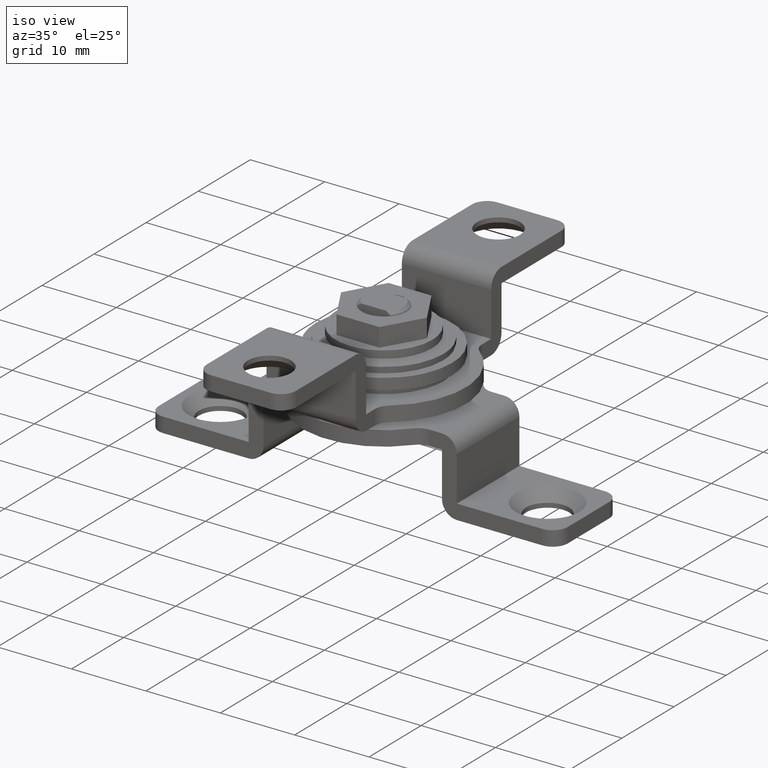
[diagram: clean part render]
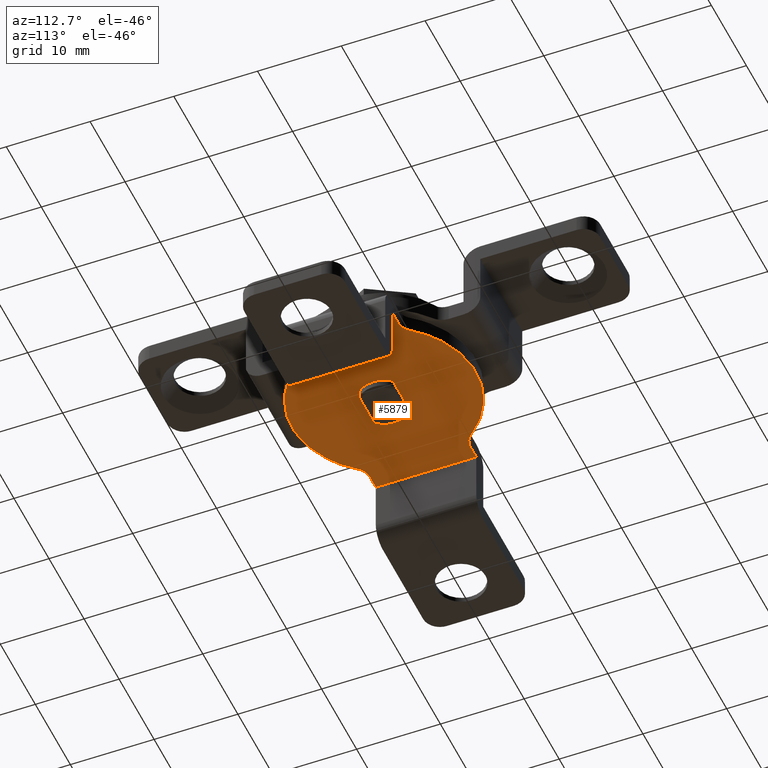
[diagram: tour spotlight — one face highlighted and labeled with its STEP entity id]
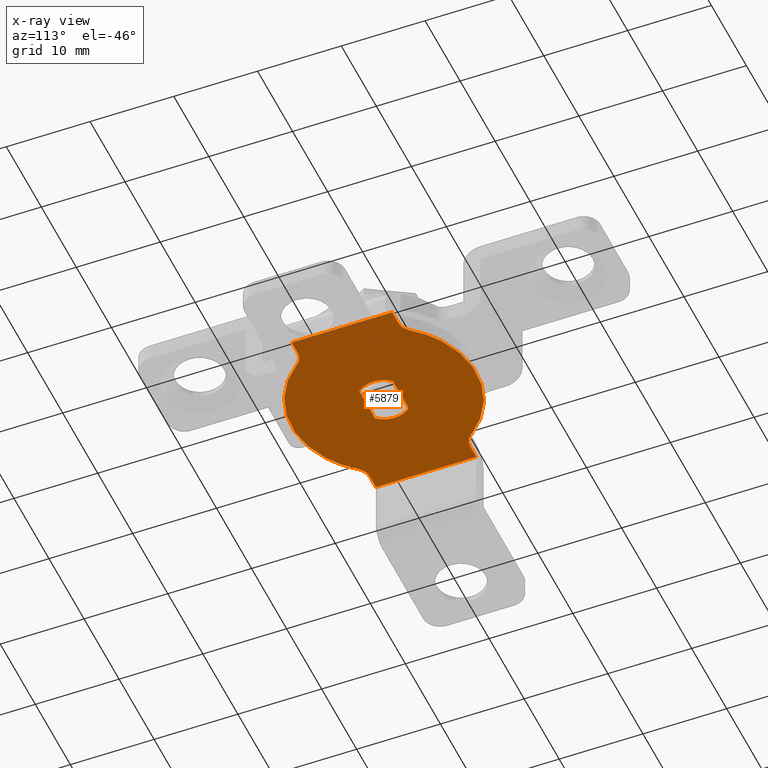
[diagram: x-ray of the same camera — body ghosted, this tour face saturated]
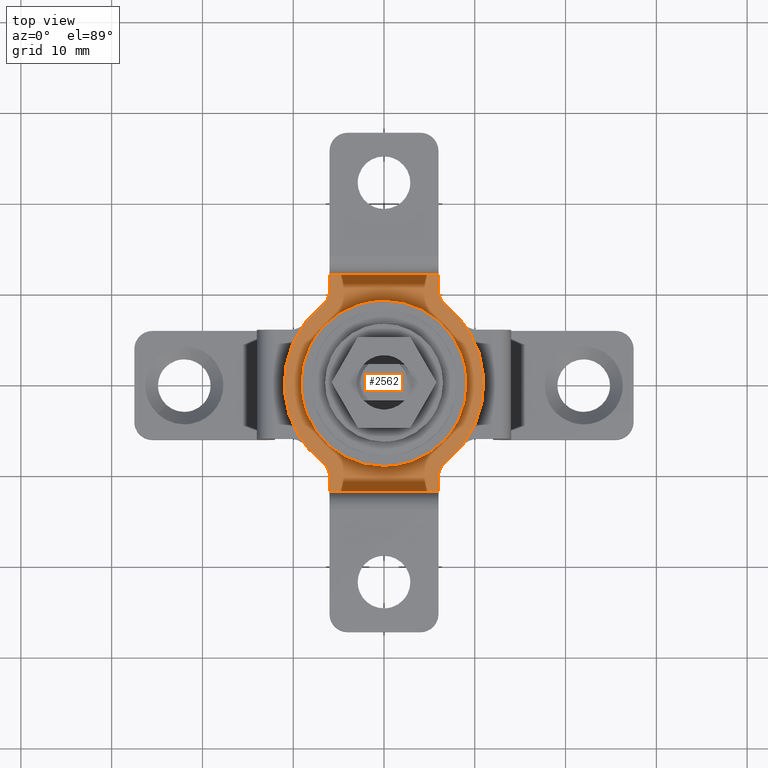
[diagram: tour spotlight — one face highlighted and labeled with its STEP entity id]
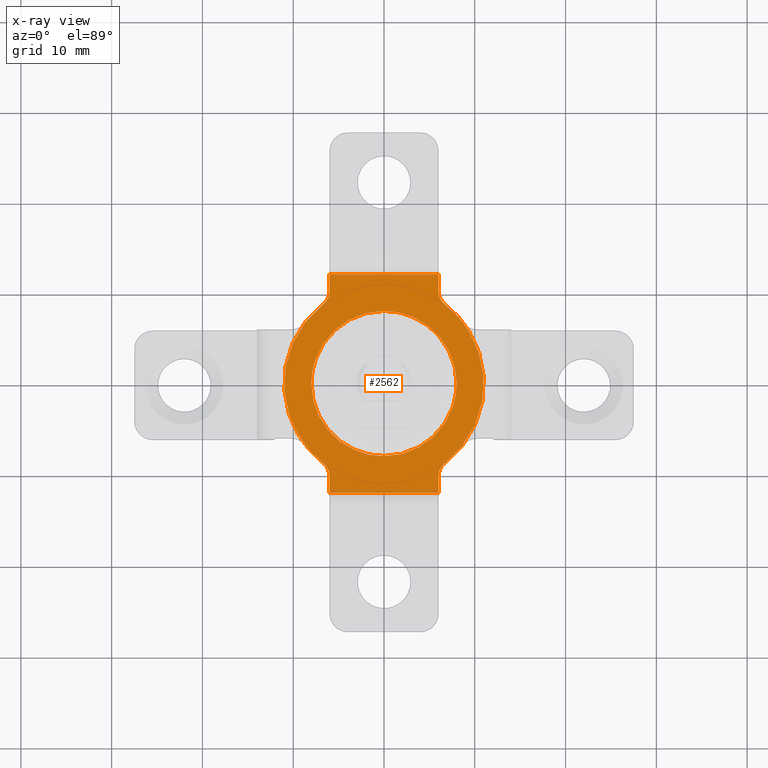
[diagram: x-ray of the same camera — body ghosted, this tour face saturated]
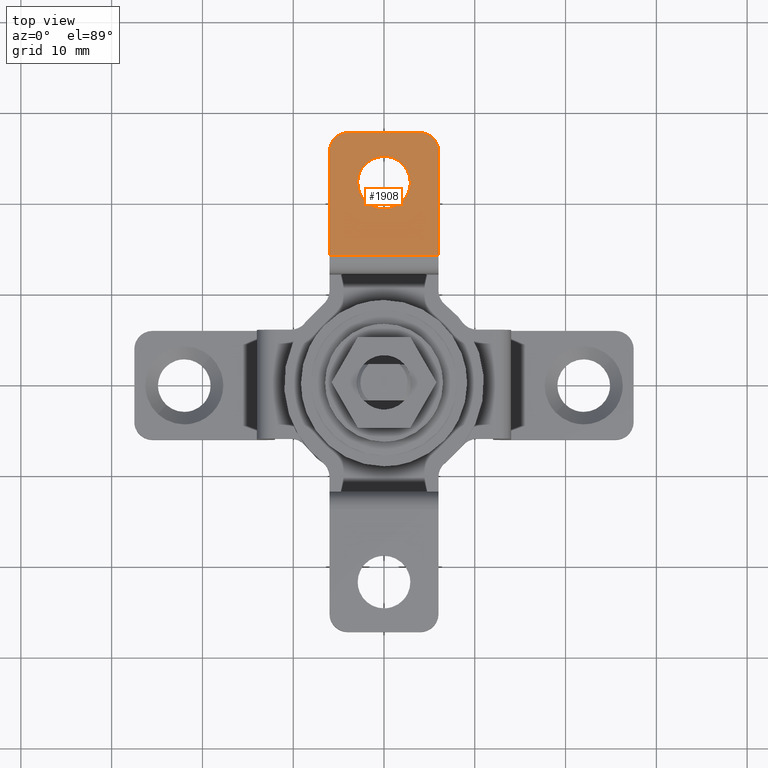
[diagram: tour spotlight — one face highlighted and labeled with its STEP entity id]
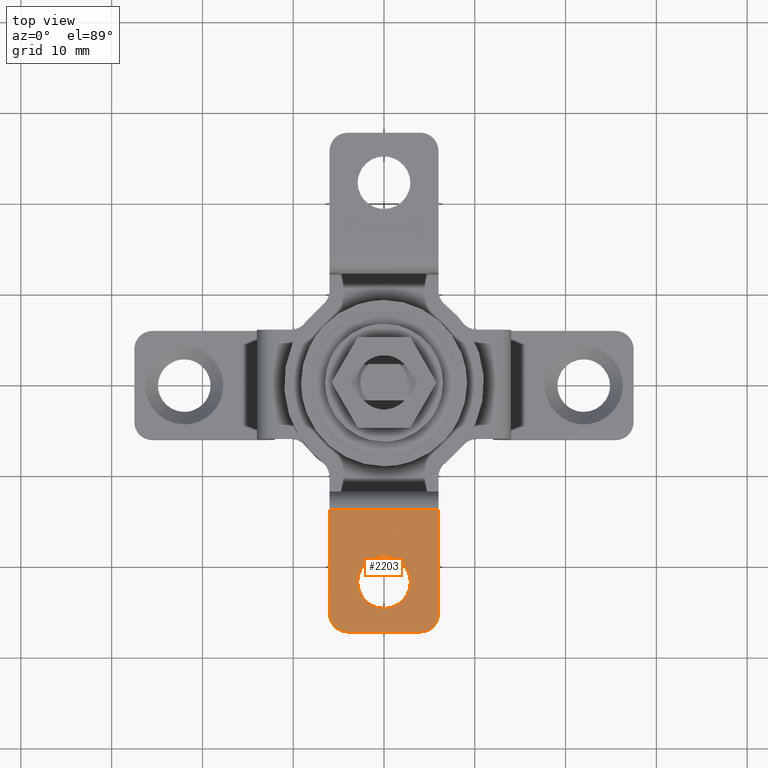
[diagram: tour spotlight — one face highlighted and labeled with its STEP entity id]
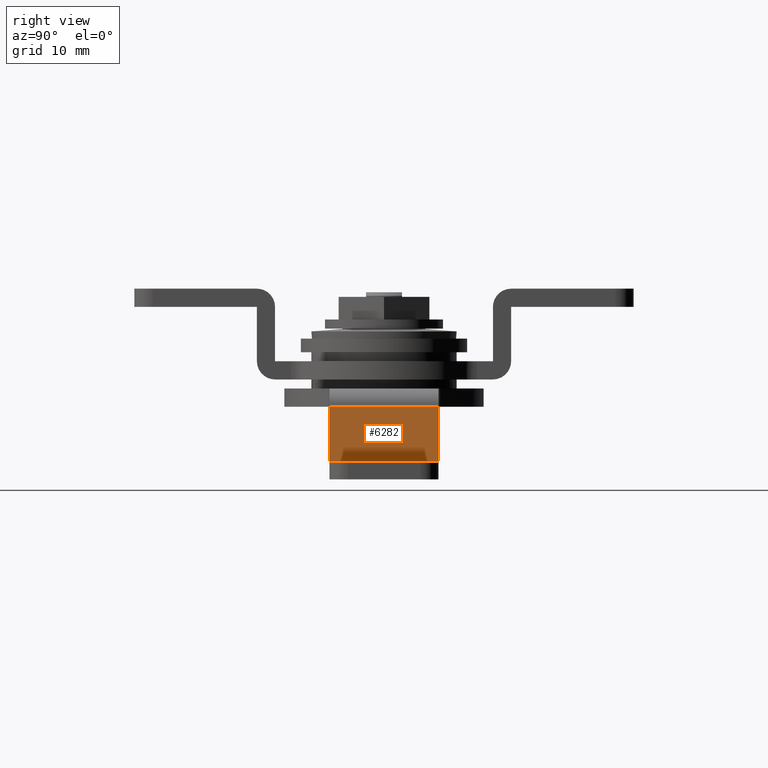
[diagram: tour spotlight — one face highlighted and labeled with its STEP entity id]
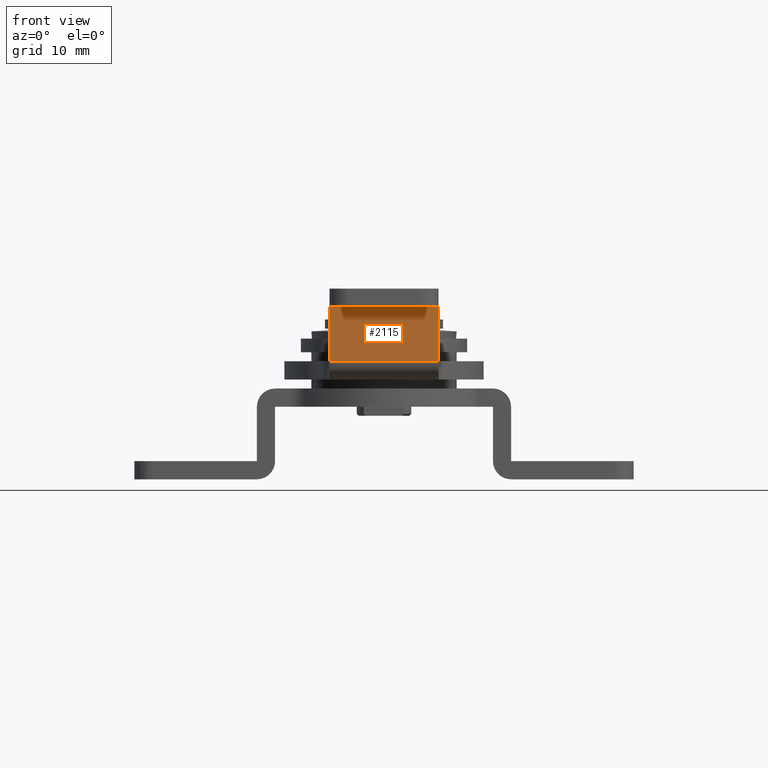
[diagram: tour spotlight — one face highlighted and labeled with its STEP entity id]
A machine part: a face-by-face anatomy tour. The part has 122 B-rep faces; the first image is the clean iso view, then the 6 largest visible faces are spotlighted one at a time (largest first), each with its STEP entity span.

Face 1 — auxiliary view, entity #5879. An x-ray twin of the same camera follows (body ghosted, this face saturated) — the face is partly hidden behind the body. In plain terms, the highlighted face is a freeform B-spline surface patch.
Definition (entity closure, byte-faithful):
#5166=CARTESIAN_POINT('',(2.236067977498360,-2.000000000000335,8.0));
#5167=VERTEX_POINT('',#5166);
#5173=CARTESIAN_POINT('',(-2.236067977501190,-2.000000000000325,8.0));
#5174=VERTEX_POINT('',#5173);
#5175=CARTESIAN_POINT('',(2.236067977498360,-2.000000000000335,8.0));
#5176=CARTESIAN_POINT('',(-2.236067977501190,-2.000000000000325,8.0));
#5177=QUASI_UNIFORM_CURVE('',1,(#5175,#5176),.UNSPECIFIED.,.F.,.U.);
#5178=EDGE_CURVE('',#5167,#5174,#5177,.T.);
#5218=CARTESIAN_POINT('',(2.236067977498385,1.999999999999685,8.0));
#5219=VERTEX_POINT('',#5218);
#5225=CARTESIAN_POINT('',(2.236067977498385,1.999999999999685,8.0));
#5226=CARTESIAN_POINT('',(2.418573477679395,1.796092458447181,8.000000000000014));
#5227=CARTESIAN_POINT('',(2.720720230414939,1.347416475633861,7.999999999999975));
#5228=CARTESIAN_POINT('',(2.959388170775649,0.639033863360458,8.000000000000012));
#5229=CARTESIAN_POINT('',(3.017799796243261,-0.000195013103150,7.999999999999985));
#5230=CARTESIAN_POINT('',(2.967949790371404,-0.512742725167427,8.000000000000020));
#5231=CARTESIAN_POINT('',(2.837478472484770,-1.022029091641268,7.999999999999947));
#5232=CARTESIAN_POINT('',(2.609201649545498,-1.522979021869174,8.000000000000028));
#5233=CARTESIAN_POINT('',(2.365302539735193,-1.855536375673588,7.999999999999989));
#5234=CARTESIAN_POINT('',(2.236067977498360,-2.000000000000335,8.0));
#5235=B_SPLINE_CURVE_WITH_KNOTS('',3,(#5225,#5226,#5227,#5228,#5229,#5230,#5231,#5232,#5233,#5234),.UNSPECIFIED.,.F.,.U.,(4,1,1,1,1,1,1,4),(0.000000052932458,0.820942670364675,1.607691166167566,2.223382478854872,2.736483788646654,3.146967125287501,3.796885966387161,4.378389653371751),.UNSPECIFIED.);
#5236=EDGE_CURVE('',#5219,#5167,#5235,.T.);
#5254=CARTESIAN_POINT('',(-2.236067977501220,1.999999999999685,8.0));
#5255=VERTEX_POINT('',#5254);
#5261=CARTESIAN_POINT('',(-2.236067977501220,1.999999999999685,8.0));
#5262=CARTESIAN_POINT('',(2.236067977498385,1.999999999999685,8.0));
#5263=QUASI_UNIFORM_CURVE('',1,(#5261,#5262),.UNSPECIFIED.,.F.,.U.);
#5264=EDGE_CURVE('',#5255,#5219,#5263,.T.);
#5298=CARTESIAN_POINT('',(-2.236067977501190,-2.000000000000325,8.0));
#5299=CARTESIAN_POINT('',(-2.441425730026927,-1.770622654832025,8.000000000000002));
#5300=CARTESIAN_POINT('',(-2.711349206695875,-1.354394058694802,7.999999999999977));
#5301=CARTESIAN_POINT('',(-2.926896320377254,-0.726259302464800,8.000000000000021));
#5302=CARTESIAN_POINT('',(-3.014649089403428,-0.160843282025251,7.999999999999979));
#5303=CARTESIAN_POINT('',(-2.992228468190904,0.400683946234387,8.000000000000034));
#5304=CARTESIAN_POINT('',(-2.851745816874633,0.990719338700565,7.999999999999954));
#5305=CARTESIAN_POINT('',(-2.609197475790349,1.522977056047599,7.999999999999998));
#5306=CARTESIAN_POINT('',(-2.365304311699611,1.855537085365555,8.000000000000005));
#5307=CARTESIAN_POINT('',(-2.236067977501220,1.999999999999685,8.0));
#5308=B_SPLINE_CURVE_WITH_KNOTS('',3,(#5298,#5299,#5300,#5301,#5302,#5303,#5304,#5305,#5306,#5307),.UNSPECIFIED.,.F.,.U.,(4,1,1,1,1,1,1,4),(0.000000052933419,0.923563602901487,1.470872975677219,1.983963864321350,2.633862441349733,3.146967125287635,3.796885966387205,4.378389653371746),.UNSPECIFIED.);
#5309=EDGE_CURVE('',#5174,#5255,#5308,.T.);
#5354=CARTESIAN_POINT('',(-8.670496801966060,-6.769230769230780,8.0));
#5355=VERTEX_POINT('',#5354);
#5356=CARTESIAN_POINT('',(-10.246950765959840,-6.0,8.0));
#5357=VERTEX_POINT('',#5356);
#5358=CARTESIAN_POINT('',(-8.670496801966060,-6.769230769230780,8.0));
#5359=CARTESIAN_POINT('',(-8.775220044491805,-6.635009280034265,8.000000000000005));
#5360=CARTESIAN_POINT('',(-8.951468153305550,-6.460684089386342,7.999999999999983));
#5361=CARTESIAN_POINT('',(-9.272932043078924,-6.242727764377050,8.000000000000039));
#5362=CARTESIAN_POINT('',(-9.670109963122373,-6.059231795073908,7.999999999999908));
#5363=CARTESIAN_POINT('',(-10.029410521615020,-5.999869692759231,8.000000000000078));
#5364=CARTESIAN_POINT('',(-10.246950765959840,-6.0,8.0));
#5365=B_SPLINE_CURVE_WITH_KNOTS('',3,(#5358,#5359,#5360,#5361,#5362,#5363,#5364),.UNSPECIFIED.,.F.,.U.,(4,1,1,1,4),(0.000000025409380,0.510711596060299,0.737694762376381,1.163283669152067,1.815860231809691),.UNSPECIFIED.);
#5366=EDGE_CURVE('',#5355,#5357,#5365,.T.);
#5408=CARTESIAN_POINT('',(-10.246950765959699,6.0,8.0));
#5409=VERTEX_POINT('',#5408);
#5410=CARTESIAN_POINT('',(-8.670496801965928,6.769230769230750,8.0));
#5411=VERTEX_POINT('',#5410);
#5412=CARTESIAN_POINT('',(-10.246950765959699,6.0,8.0));
#5413=CARTESIAN_POINT('',(-10.076710244561980,5.999949984415148,8.000000000000014));
#5414=CARTESIAN_POINT('',(-9.745722721803064,6.042522330935348,7.999999999999978));
#5415=CARTESIAN_POINT('',(-9.302649608520810,6.217373249347506,8.0));
#5416=CARTESIAN_POINT('',(-8.942297682716569,6.465502678686597,8.000000000000025));
#5417=CARTESIAN_POINT('',(-8.751965998206147,6.664856458793929,7.999999999999973));
#5418=CARTESIAN_POINT('',(-8.670496801965928,6.769230769230750,8.0));
#5419=B_SPLINE_CURVE_WITH_KNOTS('',3,(#5412,#5413,#5414,#5415,#5416,#5417,#5418),.UNSPECIFIED.,.F.,.U.,(4,1,1,1,4),(0.000000025409690,0.510711596060555,0.993047737127696,1.418641699260506,1.815860231809662),.UNSPECIFIED.);
#5420=EDGE_CURVE('',#5409,#5411,#5419,.T.);
#5488=CARTESIAN_POINT('',(8.670496801965451,6.769230769230750,8.0));
#5489=VERTEX_POINT('',#5488);
#5490=CARTESIAN_POINT('',(-8.670496801965928,6.769230769230750,8.0));
#5491=CARTESIAN_POINT('',(-8.126495621538275,7.466409643097290,8.000000000000002));
#5492=CARTESIAN_POINT('',(-7.201828233943165,8.394150124308165,8.000000000000005));
#5493=CARTESIAN_POINT('',(-5.856620117158043,9.334277348565847,7.999999999999991));
#5494=CARTESIAN_POINT('',(-4.764211143302306,9.941279372068122,8.000000000000020));
#5495=CARTESIAN_POINT('',(-3.488324925220891,10.471244421534040,8.000000000000039));
#5496=CARTESIAN_POINT('',(-2.099133986630085,10.828617521924549,7.999999999999975));
#5497=CARTESIAN_POINT('',(-0.625997438307285,11.012410955959011,8.000000000000103));
#5498=CARTESIAN_POINT('',(1.043146779167117,11.006610574127970,8.000000000000012));
#5499=CARTESIAN_POINT('',(2.844004886947609,10.683834637202329,7.999999999999957));
#5500=CARTESIAN_POINT('',(4.362332856478190,10.127624877133419,8.000000000000021));
#5501=CARTESIAN_POINT('',(5.521966582524566,9.536076083533336,8.000000000000082));
#5502=CARTESIAN_POINT('',(6.549750898098052,8.870707097943983,7.999999999999901));
#5503=CARTESIAN_POINT('',(7.650533143589396,7.952652801799985,8.000000000000226));
#5504=CARTESIAN_POINT('',(8.334417988021842,7.199755597358657,7.999999999999593));
#5505=CARTESIAN_POINT('',(8.670496801965451,6.769230769230750,8.0));
#5506=B_SPLINE_CURVE_WITH_KNOTS('',3,(#5490,#5491,#5492,#5493,#5494,#5495,#5496,#5497,#5498,#5499,#5500,#5501,#5502,#5503,#5504,#5505),.UNSPECIFIED.,.F.,.U.,(4,1,1,1,1,1,1,1,1,1,1,1,1,4),(0.000000033996926,2.652840556934738,3.901234903642093,4.915559835962917,6.398037615298884,8.036566180020285,9.206929010794958,10.845421125650160,13.030129060234261,14.668653344996351,15.682977094635010,16.931381641843011,18.335833063847168,19.974336941776169),.UNSPECIFIED.);
#5507=EDGE_CURVE('',#5411,#5489,#5506,.T.);
#5553=CARTESIAN_POINT('',(8.670496801965589,-6.769230769230780,8.0));
#5554=VERTEX_POINT('',#5553);
#5555=CARTESIAN_POINT('',(8.670496801965589,-6.769230769230780,8.0));
#5556=CARTESIAN_POINT('',(8.126497900482724,-7.466412082327448,8.000000000000027));
#5557=CARTESIAN_POINT('',(7.201825986360758,-8.394147452024564,7.999999999999954));
#5558=CARTESIAN_POINT('',(5.856621261045522,-9.334279565841916,8.000000000000046));
#5559=CARTESIAN_POINT('',(4.809725680267921,-9.915978084570140,7.999999999999957));
#5560=CARTESIAN_POINT('',(3.538210073587163,-10.454749092178741,7.999999999999989));
#5561=CARTESIAN_POINT('',(2.150830233724436,-10.822190950629020,8.000000000000034));
#5562=CARTESIAN_POINT('',(0.574298371470369,-11.018882541203210,8.000000000000028));
#5563=CARTESIAN_POINT('',(-0.834718147443637,-11.003893218101551,8.000000000000021));
#5564=CARTESIAN_POINT('',(-2.431945099021108,-10.764193830832120,8.000000000000032));
#5565=CARTESIAN_POINT('',(-4.108683616074942,-10.268901250464801,7.999999999999870));
#5566=CARTESIAN_POINT('',(-5.858043703656398,-9.384378137575812,8.000000000000254));
#5567=CARTESIAN_POINT('',(-7.434154176151439,-8.179669347651608,7.999999999999596));
#5568=CARTESIAN_POINT('',(-8.286417421400500,-7.261275725935842,8.000000000000219));
#5569=CARTESIAN_POINT('',(-8.670496801966060,-6.769230769230780,8.0));
#5570=B_SPLINE_CURVE_WITH_KNOTS('',3,(#5555,#5556,#5557,#5558,#5559,#5560,#5561,#5562,#5563,#5564,#5565,#5566,#5567,#5568,#5569),.UNSPECIFIED.,.F.,.U.,(4,1,1,1,1,1,1,1,1,1,1,1,4),(0.000000033971684,2.652840556912764,3.901234903621718,4.915559835943798,6.241983978261279,8.036566180005055,9.206929010781256,11.001477075981409,12.249871799075629,14.044455759939931,16.229155822002031,18.101743595906839,19.974336941776691),.UNSPECIFIED.);
#5571=EDGE_CURVE('',#5554,#5355,#5570,.T.);
#5661=CARTESIAN_POINT('',(-12.0,-6.0,8.0));
#5662=VERTEX_POINT('',#5661);
#5669=CARTESIAN_POINT('',(-12.0,6.0,8.0));
#5670=VERTEX_POINT('',#5669);
#5676=CARTESIAN_POINT('',(-12.0,6.0,8.0));
#5677=CARTESIAN_POINT('',(-12.0,-6.0,8.0));
#5678=QUASI_UNIFORM_CURVE('',1,(#5676,#5677),.UNSPECIFIED.,.F.,.U.);
#5679=EDGE_CURVE('',#5670,#5662,#5678,.T.);
#5770=CARTESIAN_POINT('',(-10.246950765959840,-6.0,8.0));
#5771=CARTESIAN_POINT('',(-12.0,-6.0,8.0));
#5772=QUASI_UNIFORM_CURVE('',1,(#5770,#5771),.UNSPECIFIED.,.F.,.U.);
#5773=EDGE_CURVE('',#5357,#5662,#5772,.T.);
#5807=CARTESIAN_POINT('',(-10.246950765959699,6.0,8.0));
#5808=CARTESIAN_POINT('',(-12.0,6.0,8.0));
#5809=QUASI_UNIFORM_CURVE('',1,(#5807,#5808),.UNSPECIFIED.,.F.,.U.);
#5810=EDGE_CURVE('',#5409,#5670,#5809,.T.);
#5817=CARTESIAN_POINT('',(-13.198799953483350,-12.098871152401070,8.0));
#5818=CARTESIAN_POINT('',(13.198800597213509,-12.098871152401070,8.0));
#5819=CARTESIAN_POINT('',(-13.198799953483350,12.098905770778559,8.0));
#5820=CARTESIAN_POINT('',(13.198800597213509,12.098905770778559,8.0));
#5821=B_SPLINE_SURFACE_WITH_KNOTS('',1,1,((#5817,#5819),(#5818,#5820)),.UNSPECIFIED.,.F.,.F.,.U.,(2,2),(2,2),(0.0,26.397600550696851),(0.0,24.197776923179621),.UNSPECIFIED.);
#5822=CARTESIAN_POINT('',(12.0,-6.0,8.0));
#5823=VERTEX_POINT('',#5822);
#5824=CARTESIAN_POINT('',(10.246950765959379,-6.0,8.0));
#5825=VERTEX_POINT('',#5824);
#5826=CARTESIAN_POINT('',(12.0,-6.0,8.0));
#5827=CARTESIAN_POINT('',(10.246950765959379,-6.0,8.0));
#5828=QUASI_UNIFORM_CURVE('',1,(#5826,#5827),.UNSPECIFIED.,.F.,.U.);
#5829=EDGE_CURVE('',#5823,#5825,#5828,.T.);
#5830=ORIENTED_EDGE('',*,*,#5829,.T.);
#5831=CARTESIAN_POINT('',(10.246950765959379,-6.0,8.0));
#5832=CARTESIAN_POINT('',(10.029409579618720,-5.999874211863610,8.000000000000014));
#5833=CARTESIAN_POINT('',(9.670118527070793,-6.059235968925167,7.999999999999992));
#5834=CARTESIAN_POINT('',(9.117474914936278,-6.314486776418594,8.000000000000005));
#5835=CARTESIAN_POINT('',(8.821659177248860,-6.575231599577090,7.999999999999986));
#5836=CARTESIAN_POINT('',(8.670496801965589,-6.769230769230780,8.0));
#5837=B_SPLINE_CURVE_WITH_KNOTS('',3,(#5831,#5832,#5833,#5834,#5835,#5836),.UNSPECIFIED.,.F.,.U.,(4,1,1,4),(0.000000025409177,0.652576588067328,1.078165494843095,1.815860231809700),.UNSPECIFIED.);
#5838=EDGE_CURVE('',#5825,#5554,#5837,.T.);
#5839=ORIENTED_EDGE('',*,*,#5838,.T.);
#5840=ORIENTED_EDGE('',*,*,#5571,.T.);
#5841=ORIENTED_EDGE('',*,*,#5366,.T.);
#5842=ORIENTED_EDGE('',*,*,#5773,.T.);
#5843=ORIENTED_EDGE('',*,*,#5679,.F.);
#5844=ORIENTED_EDGE('',*,*,#5810,.F.);
#5845=ORIENTED_EDGE('',*,*,#5420,.T.);
#5846=ORIENTED_EDGE('',*,*,#5507,.T.);
#5847=CARTESIAN_POINT('',(10.246950765959220,6.0,8.0));
#5848=VERTEX_POINT('',#5847);
#5849=CARTESIAN_POINT('',(8.670496801965451,6.769230769230750,8.0));
#5850=CARTESIAN_POINT('',(8.781032229391188,6.627545449224662,8.000000000000021));
#5851=CARTESIAN_POINT('',(9.020169506848912,6.394348011844222,7.999999999999974));
#5852=CARTESIAN_POINT('',(9.432023399866139,6.155827530207420,8.000000000000011));
#5853=CARTESIAN_POINT('',(9.840281185003024,6.027329980821019,7.999999999999993));
#5854=CARTESIAN_POINT('',(10.114545109416250,5.999985861762210,8.000000000000007));
#5855=CARTESIAN_POINT('',(10.246950765959220,6.0,8.0));
#5856=B_SPLINE_CURVE_WITH_KNOTS('',3,(#5849,#5850,#5851,#5852,#5853,#5854,#5855),.UNSPECIFIED.,.F.,.U.,(4,1,1,1,4),(0.000000025411380,0.539086061160822,0.993047737128065,1.418641699260594,1.815860231809663),.UNSPECIFIED.);
#5857=EDGE_CURVE('',#5489,#5848,#5856,.T.);
#5858=ORIENTED_EDGE('',*,*,#5857,.T.);
#5859=CARTESIAN_POINT('',(12.0,6.0,8.0));
#5860=VERTEX_POINT('',#5859);
#5861=CARTESIAN_POINT('',(12.0,6.0,8.0));
#5862=CARTESIAN_POINT('',(10.246950765959220,6.0,8.0));
#5863=QUASI_UNIFORM_CURVE('',1,(#5861,#5862),.UNSPECIFIED.,.F.,.U.);
#5864=EDGE_CURVE('',#5860,#5848,#5863,.T.);
#5865=ORIENTED_EDGE('',*,*,#5864,.F.);
#5866=CARTESIAN_POINT('',(12.0,6.0,8.0));
#5867=CARTESIAN_POINT('',(12.0,-6.0,8.0));
#5868=QUASI_UNIFORM_CURVE('',1,(#5866,#5867),.UNSPECIFIED.,.F.,.U.);
#5869=EDGE_CURVE('',#5860,#5823,#5868,.T.);
#5870=ORIENTED_EDGE('',*,*,#5869,.T.);
#5871=EDGE_LOOP('',(#5830,#5839,#5840,#5841,#5842,#5843,#5844,#5845,#5846,#5858,#5865,#5870));
#5872=FACE_OUTER_BOUND('',#5871,.T.);
#5873=ORIENTED_EDGE('',*,*,#5309,.F.);
#5874=ORIENTED_EDGE('',*,*,#5178,.F.);
#5875=ORIENTED_EDGE('',*,*,#5236,.F.);
#5876=ORIENTED_EDGE('',*,*,#5264,.F.);
#5877=EDGE_LOOP('',(#5873,#5874,#5875,#5876));
#5878=FACE_BOUND('',#5877,.T.);
#5879=ADVANCED_FACE('',(#5872,#5878),#5821,.F.);

Face 2 — top view, entity #2562. An x-ray twin of the same camera follows (body ghosted, this face saturated) — the face is partly hidden behind the body. In plain terms, the highlighted face is a freeform B-spline surface patch.
Definition (entity closure, byte-faithful):
#1517=CARTESIAN_POINT('',(6.769230769230780,-8.670496801965911,12.999999999961920));
#1518=VERTEX_POINT('',#1517);
#1524=CARTESIAN_POINT('',(6.0,-10.246950765959699,12.999999999961920));
#1525=VERTEX_POINT('',#1524);
#1526=CARTESIAN_POINT('',(6.0,-10.246950765959699,12.999999999961920));
#1527=CARTESIAN_POINT('',(5.999988525793829,-10.124003179812981,12.999999999961920));
#1528=CARTESIAN_POINT('',(6.023613913863414,-9.868651231201657,12.999999999961920));
#1529=CARTESIAN_POINT('',(6.132691236281459,-9.494556627093193,12.999999999961920));
#1530=CARTESIAN_POINT('',(6.357500614936454,-9.065111557556660,12.999999999961950));
#1531=CARTESIAN_POINT('',(6.597680221234377,-8.804268570193916,12.999999999961920));
#1532=CARTESIAN_POINT('',(6.769230769230780,-8.670496801965911,12.999999999961920));
#1533=B_SPLINE_CURVE_WITH_KNOTS('',3,(#1526,#1527,#1528,#1529,#1530,#1531,#1532),.UNSPECIFIED.,.F.,.U.,(4,1,1,1,4),(0.000000025410248,0.368844092859777,0.766073545848003,1.163283669152184,1.815860231809697),.UNSPECIFIED.);
#1534=EDGE_CURVE('',#1525,#1518,#1533,.T.);
#1558=CARTESIAN_POINT('',(6.769230769230780,8.670496801965911,12.999999999961920));
#1559=VERTEX_POINT('',#1558);
#1560=CARTESIAN_POINT('',(6.0,10.246950765959699,12.999999999961920));
#1561=VERTEX_POINT('',#1560);
#1562=CARTESIAN_POINT('',(6.769230769230780,8.670496801965911,12.999999999961920));
#1563=CARTESIAN_POINT('',(6.649937543187013,8.763597401833307,12.999999999961920));
#1564=CARTESIAN_POINT('',(6.425860790302772,8.983714322243017,12.999999999961910));
#1565=CARTESIAN_POINT('',(6.172652693195480,9.387173046927074,12.999999999961920));
#1566=CARTESIAN_POINT('',(6.029202719110234,9.821358541628602,12.999999999961910));
#1567=CARTESIAN_POINT('',(5.999988707841355,10.114546080444910,12.999999999961929));
#1568=CARTESIAN_POINT('',(6.0,10.246950765959699,12.999999999961920));
#1569=B_SPLINE_CURVE_WITH_KNOTS('',3,(#1562,#1563,#1564,#1565,#1566,#1567,#1568),.UNSPECIFIED.,.F.,.U.,(4,1,1,1,4),(0.000000025410377,0.453965077010190,0.936291796485045,1.418641699260477,1.815860231809698),.UNSPECIFIED.);
#1570=EDGE_CURVE('',#1559,#1561,#1569,.T.);
#1720=CARTESIAN_POINT('',(-6.000000000000230,10.246950765959481,12.999999999961920));
#1721=VERTEX_POINT('',#1720);
#1722=CARTESIAN_POINT('',(-6.769230769230959,8.670496801965719,12.999999999961920));
#1723=VERTEX_POINT('',#1722);
#1724=CARTESIAN_POINT('',(-6.000000000000230,10.246950765959481,12.999999999961920));
#1725=CARTESIAN_POINT('',(-5.999985867120543,10.114545117555220,12.999999999961940));
#1726=CARTESIAN_POINT('',(-6.027329861164495,9.840281108236722,12.999999999961910));
#1727=CARTESIAN_POINT('',(-6.155828307751600,9.432023965775786,12.999999999961910));
#1728=CARTESIAN_POINT('',(-6.394346177373172,9.020168292967275,12.999999999961970));
#1729=CARTESIAN_POINT('',(-6.627546724693447,8.781032832324508,12.999999999961901));
#1730=CARTESIAN_POINT('',(-6.769230769230959,8.670496801965719,12.999999999961920));
#1731=B_SPLINE_CURVE_WITH_KNOTS('',3,(#1724,#1725,#1726,#1727,#1728,#1729,#1730),.UNSPECIFIED.,.F.,.U.,(4,1,1,1,4),(0.000000025410122,0.397218557959173,0.822812520091843,1.276774196059462,1.815860231809641),.UNSPECIFIED.);
#1732=EDGE_CURVE('',#1721,#1723,#1731,.T.);
#1763=CARTESIAN_POINT('',(-6.000000000000230,-10.246950765959481,12.999999999961920));
#1764=VERTEX_POINT('',#1763);
#1770=CARTESIAN_POINT('',(-6.769230769230959,-8.670496801965719,12.999999999961920));
#1771=VERTEX_POINT('',#1770);
#1772=CARTESIAN_POINT('',(-6.769230769230959,-8.670496801965719,12.999999999961920));
#1773=CARTESIAN_POINT('',(-6.664857988450565,-8.751966759490479,12.999999999961920));
#1774=CARTESIAN_POINT('',(-6.451742866040494,-8.955419949821160,12.999999999961901));
#1775=CARTESIAN_POINT('',(-6.187179222039081,-9.351520096347977,12.999999999961950));
#1776=CARTESIAN_POINT('',(-6.031065393679310,-9.802447950997243,12.999999999961910));
#1777=CARTESIAN_POINT('',(-5.999991964858912,-10.114546541091951,12.999999999961920));
#1778=CARTESIAN_POINT('',(-6.000000000000230,-10.246950765959481,12.999999999961920));
#1779=B_SPLINE_CURVE_WITH_KNOTS('',3,(#1772,#1773,#1774,#1775,#1776,#1777,#1778),.UNSPECIFIED.,.F.,.U.,(4,1,1,1,4),(0.000000025410276,0.397218557959373,0.879568460734846,1.418641699260453,1.815860231809641),.UNSPECIFIED.);
#1780=EDGE_CURVE('',#1771,#1764,#1779,.T.);
#1806=CARTESIAN_POINT('',(-6.769230769230959,8.670496801965719,12.999999999961920));
#1807=CARTESIAN_POINT('',(-7.199745001661836,8.334405635883014,12.999999999961929));
#1808=CARTESIAN_POINT('',(-8.126467083157579,7.492758213035355,12.999999999961910));
#1809=CARTESIAN_POINT('',(-9.204182460716545,6.113300732849392,12.999999999961929));
#1810=CARTESIAN_POINT('',(-10.066578276450819,4.534861037535948,12.999999999961940));
#1811=CARTESIAN_POINT('',(-10.596109591785661,3.089193982840494,12.999999999961890));
#1812=CARTESIAN_POINT('',(-10.953339771113040,1.407030769465483,12.999999999961840));
#1813=CARTESIAN_POINT('',(-11.039279482994770,-0.105401911469618,12.999999999962160));
#1814=CARTESIAN_POINT('',(-10.910040335677230,-1.558187341810926,12.999999999961810));
#1815=CARTESIAN_POINT('',(-10.617352440312690,-3.040186737715336,12.999999999962080));
#1816=CARTESIAN_POINT('',(-10.118821630896420,-4.416310433074958,12.999999999961769));
#1817=CARTESIAN_POINT('',(-9.404092159077857,-5.746559154441415,12.999999999961940));
#1818=CARTESIAN_POINT('',(-8.757370251248165,-6.693175912958504,12.999999999962100));
#1819=CARTESIAN_POINT('',(-7.875421887541212,-7.720666847978963,12.999999999961579));
#1820=CARTESIAN_POINT('',(-7.199757783958206,-8.334420610538205,12.999999999962320));
#1821=CARTESIAN_POINT('',(-6.769230769230959,-8.670496801965719,12.999999999961920));
#1822=B_SPLINE_CURVE_WITH_KNOTS('',3,(#1806,#1807,#1808,#1809,#1810,#1811,#1812,#1813,#1814,#1815,#1816,#1817,#1818,#1819,#1820,#1821),.UNSPECIFIED.,.F.,.U.,(4,1,1,1,1,1,1,1,1,1,1,1,1,4),(0.000000033990929,1.638515277970996,3.745182047977629,5.227659011690957,7.022239379193859,8.348666933970291,10.377287749056840,11.547646485114290,12.718030616186789,14.902727960667921,15.917054950893601,17.243482860797641,18.335833063847009,19.974336941776048),.UNSPECIFIED.);
#1823=EDGE_CURVE('',#1723,#1771,#1822,.T.);
#1845=CARTESIAN_POINT('',(6.769230769230780,-8.670496801965911,12.999999999961920));
#1846=CARTESIAN_POINT('',(7.466402783328340,-8.126488928559770,12.999999999961920));
#1847=CARTESIAN_POINT('',(8.394157254898911,-7.201834847080708,12.999999999961901));
#1848=CARTESIAN_POINT('',(9.334273350855096,-5.856617300672225,12.999999999961950));
#1849=CARTESIAN_POINT('',(9.966582001021379,-4.718700343526351,12.999999999961860));
#1850=CARTESIAN_POINT('',(10.487726377893930,-3.438438753171425,12.999999999961840));
#1851=CARTESIAN_POINT('',(10.835061276942580,-2.047444020784315,12.999999999962110));
#1852=CARTESIAN_POINT('',(11.018874582682850,-0.574304461330700,12.999999999961791));
#1853=CARTESIAN_POINT('',(11.000374037223059,1.173950357006579,12.999999999962190));
#1854=CARTESIAN_POINT('',(10.620295427866470,3.097712207775166,12.999999999961600));
#1855=CARTESIAN_POINT('',(9.933868489532689,4.818614717211220,12.999999999962389));
#1856=CARTESIAN_POINT('',(9.079589235125839,6.281883299151600,12.999999999961551));
#1857=CARTESIAN_POINT('',(8.049209656955446,7.562878820473374,12.999999999962290));
#1858=CARTESIAN_POINT('',(7.199749078283224,8.334413210110661,12.999999999961981));
#1859=CARTESIAN_POINT('',(6.769230769230780,8.670496801965911,12.999999999961920));
#1860=B_SPLINE_CURVE_WITH_KNOTS('',3,(#1845,#1846,#1847,#1848,#1849,#1850,#1851,#1852,#1853,#1854,#1855,#1856,#1857,#1858,#1859),.UNSPECIFIED.,.F.,.U.,(4,1,1,1,1,1,1,1,1,1,1,1,4),(0.000000033966096,2.652840556908295,3.901234903617768,4.915559835940245,6.554082851923859,8.036566180002559,9.206929010779085,11.001477075979750,13.264199305156350,15.058777898713110,16.541256525272239,18.335833063845541,19.974336941776748),.UNSPECIFIED.);
#1861=EDGE_CURVE('',#1518,#1559,#1860,.T.);
#2262=CARTESIAN_POINT('',(6.0,-12.0,12.999999999961920));
#2263=VERTEX_POINT('',#2262);
#2269=CARTESIAN_POINT('',(-6.000000000000230,-12.0,12.999999999961920));
#2270=VERTEX_POINT('',#2269);
#2271=CARTESIAN_POINT('',(-6.000000000000230,-12.0,12.999999999961920));
#2272=CARTESIAN_POINT('',(6.0,-12.0,12.999999999961920));
#2273=QUASI_UNIFORM_CURVE('',1,(#2271,#2272),.UNSPECIFIED.,.F.,.U.);
#2274=EDGE_CURVE('',#2270,#2263,#2273,.T.);
#2290=CARTESIAN_POINT('',(6.0,12.0,12.999999999961920));
#2291=VERTEX_POINT('',#2290);
#2306=CARTESIAN_POINT('',(-6.000000000000230,12.0,12.999999999961920));
#2307=VERTEX_POINT('',#2306);
#2313=CARTESIAN_POINT('',(-6.000000000000230,12.0,12.999999999961920));
#2314=CARTESIAN_POINT('',(6.0,12.0,12.999999999961920));
#2315=QUASI_UNIFORM_CURVE('',1,(#2313,#2314),.UNSPECIFIED.,.F.,.U.);
#2316=EDGE_CURVE('',#2307,#2291,#2315,.T.);
#2373=CARTESIAN_POINT('',(6.0,-12.0,12.999999999961920));
#2374=CARTESIAN_POINT('',(6.0,-10.246950765959699,12.999999999961920));
#2375=QUASI_UNIFORM_CURVE('',1,(#2373,#2374),.UNSPECIFIED.,.F.,.U.);
#2376=EDGE_CURVE('',#2263,#1525,#2375,.T.);
#2398=CARTESIAN_POINT('',(6.0,10.246950765959699,12.999999999961920));
#2399=CARTESIAN_POINT('',(6.0,12.0,12.999999999961920));
#2400=QUASI_UNIFORM_CURVE('',1,(#2398,#2399),.UNSPECIFIED.,.F.,.U.);
#2401=EDGE_CURVE('',#1561,#2291,#2400,.T.);
#2415=CARTESIAN_POINT('',(-6.000000000000230,-12.0,12.999999999961920));
#2416=CARTESIAN_POINT('',(-6.000000000000230,-10.246950765959481,12.999999999961920));
#2417=QUASI_UNIFORM_CURVE('',1,(#2415,#2416),.UNSPECIFIED.,.F.,.U.);
#2418=EDGE_CURVE('',#2270,#1764,#2417,.T.);
#2439=CARTESIAN_POINT('',(-6.000000000000230,10.246950765959481,12.999999999961920));
#2440=CARTESIAN_POINT('',(-6.000000000000230,12.0,12.999999999961920));
#2441=QUASI_UNIFORM_CURVE('',1,(#2439,#2440),.UNSPECIFIED.,.F.,.U.);
#2442=EDGE_CURVE('',#1721,#2307,#2441,.T.);
#2454=CARTESIAN_POINT('',(12.098892464074220,-13.198799953483350,12.999999999961920));
#2455=CARTESIAN_POINT('',(-12.098890300425561,-13.198799953483350,12.999999999961920));
#2456=CARTESIAN_POINT('',(12.098892464074220,13.198800597213509,12.999999999961920));
#2457=CARTESIAN_POINT('',(-12.098890300425561,13.198800597213509,12.999999999961920));
#2458=B_SPLINE_SURFACE_WITH_KNOTS('',1,1,((#2454,#2456),(#2455,#2457)),.UNSPECIFIED.,.F.,.F.,.U.,(2,2),(2,2),(0.0,24.197782764499781),(0.0,26.397600550696851),.UNSPECIFIED.);
#2459=ORIENTED_EDGE('',*,*,#2442,.F.);
#2460=ORIENTED_EDGE('',*,*,#1732,.T.);
#2461=ORIENTED_EDGE('',*,*,#1823,.T.);
#2462=ORIENTED_EDGE('',*,*,#1780,.T.);
#2463=ORIENTED_EDGE('',*,*,#2418,.F.);
#2464=ORIENTED_EDGE('',*,*,#2274,.T.);
#2465=ORIENTED_EDGE('',*,*,#2376,.T.);
#2466=ORIENTED_EDGE('',*,*,#1534,.T.);
#2467=ORIENTED_EDGE('',*,*,#1861,.T.);
#2468=ORIENTED_EDGE('',*,*,#1570,.T.);
#2469=ORIENTED_EDGE('',*,*,#2401,.T.);
#2470=ORIENTED_EDGE('',*,*,#2316,.F.);
#2471=EDGE_LOOP('',(#2459,#2460,#2461,#2462,#2463,#2464,#2465,#2466,#2467,#2468,#2469,#2470));
#2472=FACE_OUTER_BOUND('',#2471,.T.);
#2473=CARTESIAN_POINT('',(-7.999999999999665,0.0,12.999999999961920));
#2474=VERTEX_POINT('',#2473);
#2475=CARTESIAN_POINT('',(0.000000690382151,-7.999999999999661,12.999999999961920));
#2476=VERTEX_POINT('',#2475);
#2477=CARTESIAN_POINT('',(-7.999999999999665,0.0,12.999999999961920));
#2478=CARTESIAN_POINT('',(-8.000203300047520,-0.670886299894482,12.999999999961910));
#2479=CARTESIAN_POINT('',(-7.888198794088727,-1.554361090425397,12.999999999961890));
#2480=CARTESIAN_POINT('',(-7.530538633929883,-2.746409551660941,12.999999999961959));
#2481=CARTESIAN_POINT('',(-7.161165979134285,-3.622945998887284,12.999999999961830));
#2482=CARTESIAN_POINT('',(-6.599049125744853,-4.567338848846673,12.999999999962160));
#2483=CARTESIAN_POINT('',(-5.850988804863705,-5.502028528783406,12.999999999961529));
#2484=CARTESIAN_POINT('',(-4.907149415006008,-6.368111444760945,12.999999999962119));
#2485=CARTESIAN_POINT('',(-3.677110501237715,-7.157680586123265,12.999999999961780));
#2486=CARTESIAN_POINT('',(-2.365446769262375,-7.686893477051552,12.999999999961830));
#2487=CARTESIAN_POINT('',(-1.096277177354156,-7.951439021757127,12.999999999962210));
#2488=CARTESIAN_POINT('',(-0.343608431154925,-8.000009720636037,12.999999999961000));
#2489=CARTESIAN_POINT('',(0.000000690382151,-7.999999999999661,12.999999999961920));
#2490=B_SPLINE_CURVE_WITH_KNOTS('',3,(#2477,#2478,#2479,#2480,#2481,#2482,#2483,#2484,#2485,#2486,#2487,#2488,#2489),.UNSPECIFIED.,.F.,.U.,(4,1,1,1,1,1,1,1,1,1,4),(0.000000034073411,2.012583012383191,2.650720046058016,3.730649971353904,4.859661209258496,5.939592328124924,7.314024236930388,8.688480019675762,10.308373426421390,11.535561862573850,12.566390716459271),.UNSPECIFIED.);
#2491=EDGE_CURVE('',#2474,#2476,#2490,.T.);
#2492=ORIENTED_EDGE('',*,*,#2491,.F.);
#2493=CARTESIAN_POINT('',(-5.404721771228472,5.898218826614015,12.999999999961920));
#2494=VERTEX_POINT('',#2493);
#2495=CARTESIAN_POINT('',(-5.404721771228472,5.898218826614015,12.999999999961920));
#2496=CARTESIAN_POINT('',(-5.710350905206533,5.618193887464797,12.999999999961920));
#2497=CARTESIAN_POINT('',(-6.289758071867829,4.997826191046198,12.999999999961950));
#2498=CARTESIAN_POINT('',(-7.054405312476238,3.862365777857754,12.999999999961890));
#2499=CARTESIAN_POINT('',(-7.627514701916891,2.559914174925797,12.999999999962030));
#2500=CARTESIAN_POINT('',(-7.939608206640665,1.226275198195852,12.999999999961760));
#2501=CARTESIAN_POINT('',(-8.000014917467267,0.379972307755773,12.999999999962069));
#2502=CARTESIAN_POINT('',(-7.999999999999665,0.0,12.999999999961920));
#2503=B_SPLINE_CURVE_WITH_KNOTS('',3,(#2495,#2496,#2497,#2498,#2499,#2500,#2501,#2502),.UNSPECIFIED.,.F.,.U.,(4,1,1,1,1,4),(0.000000010457224,1.243546933012273,2.538914849281039,4.093347990141911,5.492343781615709,6.632262828970299),.UNSPECIFIED.);
#2504=EDGE_CURVE('',#2494,#2474,#2503,.T.);
#2505=ORIENTED_EDGE('',*,*,#2504,.F.);
#2506=CARTESIAN_POINT('',(-0.000000690382173,7.999999999999660,12.999999999961920));
#2507=VERTEX_POINT('',#2506);
#2508=CARTESIAN_POINT('',(-0.000000690382173,7.999999999999660,12.999999999961920));
#2509=CARTESIAN_POINT('',(-0.417243766266812,8.000021873811235,12.999999999961910));
#2510=CARTESIAN_POINT('',(-1.282632755125256,7.932156193079619,12.999999999961990));
#2511=CARTESIAN_POINT('',(-2.502639874734197,7.632985291483675,12.999999999961871));
#2512=CARTESIAN_POINT('',(-3.517161527265560,7.207640574315783,12.999999999961959));
#2513=CARTESIAN_POINT('',(-4.484651659869065,6.655412786269666,12.999999999961871));
#2514=CARTESIAN_POINT('',(-5.062945498303590,6.211460838534079,12.999999999961940));
#2515=CARTESIAN_POINT('',(-5.404721771228472,5.898218826614015,12.999999999961920));
#2516=B_SPLINE_CURVE_WITH_KNOTS('',3,(#2508,#2509,#2510,#2511,#2512,#2513,#2514,#2515),.UNSPECIFIED.,.F.,.U.,(4,1,1,1,1,4),(7.712690E-009,1.251728419700119,2.596187004610933,3.755188877391476,4.543316283083081,5.934127125550964),.UNSPECIFIED.);
#2517=EDGE_CURVE('',#2507,#2494,#2516,.T.);
#2518=ORIENTED_EDGE('',*,*,#2517,.F.);
#2519=CARTESIAN_POINT('',(7.999999999999714,0.0,12.999999999961920));
#2520=VERTEX_POINT('',#2519);
#2521=CARTESIAN_POINT('',(7.999999999999714,0.0,12.999999999961920));
#2522=CARTESIAN_POINT('',(8.000051479553546,0.523598785738645,12.999999999961929));
#2523=CARTESIAN_POINT('',(7.893649030199250,1.603515573131456,12.999999999961910));
#2524=CARTESIAN_POINT('',(7.455155237523326,3.017737037560274,12.999999999961981));
#2525=CARTESIAN_POINT('',(6.858159475220842,4.168220643802385,12.999999999961879));
#2526=CARTESIAN_POINT('',(6.213371529870396,5.077814982566460,12.999999999961871));
#2527=CARTESIAN_POINT('',(5.429327353342202,5.916680102973367,12.999999999961821));
#2528=CARTESIAN_POINT('',(4.527853403307253,6.629131426333331,12.999999999962011));
#2529=CARTESIAN_POINT('',(3.577016583913240,7.179378698436726,12.999999999961799));
#2530=CARTESIAN_POINT('',(2.655505342061027,7.567715480099979,12.999999999962000));
#2531=CARTESIAN_POINT('',(1.472581824912584,7.902935500606432,12.999999999961879));
#2532=CARTESIAN_POINT('',(0.572693535210671,8.000097166476579,12.999999999961929));
#2533=CARTESIAN_POINT('',(-0.000000690382173,7.999999999999660,12.999999999961920));
#2534=B_SPLINE_CURVE_WITH_KNOTS('',3,(#2521,#2522,#2523,#2524,#2525,#2526,#2527,#2528,#2529,#2530,#2531,#2532,#2533),.UNSPECIFIED.,.F.,.U.,(4,1,1,1,1,1,1,1,1,1,4),(0.000000034058489,1.570796165460893,3.239773432013637,4.417876569351435,5.448708959238707,6.577700055539540,7.853982867921640,8.884827563420391,9.866583462209164,10.848334306155911,12.566390716459370),.UNSPECIFIED.);
#2535=EDGE_CURVE('',#2520,#2507,#2534,.T.);
#2536=ORIENTED_EDGE('',*,*,#2535,.F.);
#2537=CARTESIAN_POINT('',(5.404721771228509,-5.898218826614002,12.999999999961920));
#2538=VERTEX_POINT('',#2537);
#2539=CARTESIAN_POINT('',(5.404721771228509,-5.898218826614002,12.999999999961920));
#2540=CARTESIAN_POINT('',(5.876000860125448,-5.466595808738391,12.999999999961950));
#2541=CARTESIAN_POINT('',(6.544162968347889,-4.687556122640809,12.999999999961860));
#2542=CARTESIAN_POINT('',(7.273098702658119,-3.408929559293018,12.999999999962011));
#2543=CARTESIAN_POINT('',(7.715894873698927,-2.242162141646745,12.999999999961910));
#2544=CARTESIAN_POINT('',(7.954255640644163,-1.070833400595330,12.999999999962011));
#2545=CARTESIAN_POINT('',(8.000005862232285,-0.328156205901000,12.999999999961720));
#2546=CARTESIAN_POINT('',(7.999999999999714,0.0,12.999999999961920));
#2547=B_SPLINE_CURVE_WITH_KNOTS('',3,(#2539,#2540,#2541,#2542,#2543,#2544,#2545,#2546),.UNSPECIFIED.,.F.,.U.,(4,1,1,1,1,4),(0.000000010456787,1.917138767981643,3.057059277236052,4.404232766857421,5.647790525069962,6.632262828970294),.UNSPECIFIED.);
#2548=EDGE_CURVE('',#2538,#2520,#2547,.T.);
#2549=ORIENTED_EDGE('',*,*,#2548,.F.);
#2550=CARTESIAN_POINT('',(0.000000690382151,-7.999999999999661,12.999999999961920));
#2551=CARTESIAN_POINT('',(0.525421477538191,-8.000067193892555,12.999999999961929));
#2552=CARTESIAN_POINT('',(1.576233441257414,-7.896107725486904,12.999999999961920));
#2553=CARTESIAN_POINT('',(2.928063366599466,-7.484560271584485,12.999999999961849));
#2554=CARTESIAN_POINT('',(4.232115925730278,-6.837261805416721,12.999999999962011));
#2555=CARTESIAN_POINT('',(4.983227410020922,-6.284590719955624,12.999999999961791));
#2556=CARTESIAN_POINT('',(5.404721771228509,-5.898218826614002,12.999999999961920));
#2557=B_SPLINE_CURVE_WITH_KNOTS('',3,(#2550,#2551,#2552,#2553,#2554,#2555,#2556),.UNSPECIFIED.,.F.,.U.,(4,1,1,1,4),(7.715147E-009,1.576252724165610,3.152500617090853,4.218791978619852,5.934127125551010),.UNSPECIFIED.);
#2558=EDGE_CURVE('',#2476,#2538,#2557,.T.);
#2559=ORIENTED_EDGE('',*,*,#2558,.F.);
#2560=EDGE_LOOP('',(#2492,#2505,#2518,#2536,#2549,#2559));
#2561=FACE_BOUND('',#2560,.T.);
#2562=ADVANCED_FACE('',(#2472,#2561),#2458,.F.);

Face 3 — top view, entity #1908. In plain terms, the highlighted face is a freeform B-spline surface patch.
Definition (entity closure, byte-faithful):
#548=CARTESIAN_POINT('',(-1.959211730942642,24.138104351227149,20.999999999961851));
#549=VERTEX_POINT('',#548);
#596=CARTESIAN_POINT('',(1.959211730942660,19.861895648772840,20.999999999961862));
#597=VERTEX_POINT('',#596);
#603=CARTESIAN_POINT('',(2.899999999999870,22.0,20.999999999961851));
#604=VERTEX_POINT('',#603);
#605=CARTESIAN_POINT('',(1.959211730942660,19.861895648772840,20.999999999961862));
#606=CARTESIAN_POINT('',(2.125426824508911,20.014136261071869,20.999999999961901));
#607=CARTESIAN_POINT('',(2.356109005151121,20.281322211954340,20.999999999961830));
#608=CARTESIAN_POINT('',(2.616667580368694,20.724933877466921,20.999999999961879));
#609=CARTESIAN_POINT('',(2.832280982648915,21.261275973798931,20.999999999961940));
#610=CARTESIAN_POINT('',(2.900126286567118,21.711979554980420,20.999999999961751));
#611=CARTESIAN_POINT('',(2.899999999999870,22.0,20.999999999961851));
#612=B_SPLINE_CURVE_WITH_KNOTS('',3,(#605,#606,#607,#608,#609,#610,#611),.UNSPECIFIED.,.F.,.U.,(4,1,1,1,4),(0.000000017839365,0.676183791626467,1.051844693064289,1.540190310155942,2.404207866632770),.UNSPECIFIED.);
#613=EDGE_CURVE('',#597,#604,#612,.T.);
#615=CARTESIAN_POINT('',(-0.000000570031611,24.899999999999810,20.999999999961851));
#616=VERTEX_POINT('',#615);
#617=CARTESIAN_POINT('',(2.899999999999870,22.0,20.999999999961851));
#618=CARTESIAN_POINT('',(2.900049423308388,22.225397443707180,20.999999999961819));
#619=CARTESIAN_POINT('',(2.856892634065382,22.593115750367090,20.999999999961911));
#620=CARTESIAN_POINT('',(2.670133267850042,23.182801711515520,20.999999999961808));
#621=CARTESIAN_POINT('',(2.366900595721144,23.725877380940140,20.999999999961901));
#622=CARTESIAN_POINT('',(1.916827243630097,24.204369038593601,20.999999999961808));
#623=CARTESIAN_POINT('',(1.447282552952401,24.530742092495771,20.999999999961940));
#624=CARTESIAN_POINT('',(1.025095196998539,24.724104970673650,20.999999999961890));
#625=CARTESIAN_POINT('',(0.545667193135763,24.863141086726522,20.999999999961339));
#626=CARTESIAN_POINT('',(0.213530187134455,24.900037511551542,20.999999999962728));
#627=CARTESIAN_POINT('',(-0.000000570031611,24.899999999999810,20.999999999961851));
#628=B_SPLINE_CURVE_WITH_KNOTS('',3,(#617,#618,#619,#620,#621,#622,#623,#624,#625,#626,#627),.UNSPECIFIED.,.F.,.U.,(4,1,1,1,1,1,1,1,4),(0.000000059204410,0.676182201801858,1.103245901231528,1.850619904098976,2.526782683444071,3.060613220675454,3.558860313397420,3.914753972565544,4.555338251621685),.UNSPECIFIED.);
#629=EDGE_CURVE('',#604,#616,#628,.T.);
#631=CARTESIAN_POINT('',(-0.000000570031611,24.899999999999810,20.999999999961851));
#632=CARTESIAN_POINT('',(-0.201669132602965,24.900028806696689,20.999999999961862));
#633=CARTESIAN_POINT('',(-0.571379401287400,24.861276519745619,20.999999999961869));
#634=CARTESIAN_POINT('',(-1.109312512784130,24.697510155057351,20.999999999961780));
#635=CARTESIAN_POINT('',(-1.568423692244907,24.457901796704650,20.999999999962029));
#636=CARTESIAN_POINT('',(-1.843573668826606,24.244077946124118,20.999999999961691));
#637=CARTESIAN_POINT('',(-1.959211730942642,24.138104351227149,20.999999999961851));
#638=B_SPLINE_CURVE_WITH_KNOTS('',3,(#631,#632,#633,#634,#635,#636,#637),.UNSPECIFIED.,.F.,.U.,(4,1,1,1,4),(0.000000013483633,0.605005977382671,1.109167481610299,1.680570905515594,2.151129869749539),.UNSPECIFIED.);
#639=EDGE_CURVE('',#616,#549,#638,.T.);
#663=CARTESIAN_POINT('',(-2.899999999999860,22.0,20.999999999961851));
#664=VERTEX_POINT('',#663);
#665=CARTESIAN_POINT('',(-1.959211730942642,24.138104351227149,20.999999999961851));
#666=CARTESIAN_POINT('',(-2.199437466385366,23.918301441801770,20.999999999961940));
#667=CARTESIAN_POINT('',(-2.518583776071178,23.506939271382699,20.999999999961759));
#668=CARTESIAN_POINT('',(-2.828519244716401,22.763762915833230,20.999999999961972));
#669=CARTESIAN_POINT('',(-2.900115792449074,22.288018017068080,20.999999999961808));
#670=CARTESIAN_POINT('',(-2.899999999999860,22.0,20.999999999961851));
#671=B_SPLINE_CURVE_WITH_KNOTS('',3,(#665,#666,#667,#668,#669,#670),.UNSPECIFIED.,.F.,.U.,(4,1,1,4),(0.000000017838533,0.976716098323104,1.540190310155774,2.404207866632760),.UNSPECIFIED.);
#672=EDGE_CURVE('',#549,#664,#671,.T.);
#674=CARTESIAN_POINT('',(0.000000570031667,19.100000000000190,20.999999999961862));
#675=VERTEX_POINT('',#674);
#676=CARTESIAN_POINT('',(-2.899999999999860,22.0,20.999999999961851));
#677=CARTESIAN_POINT('',(-2.900222434774148,21.679672684882210,20.999999999961840));
#678=CARTESIAN_POINT('',(-2.818558253286082,21.193444053777700,20.999999999961879));
#679=CARTESIAN_POINT('',(-2.567594035633425,20.627430425193481,20.999999999961862));
#680=CARTESIAN_POINT('',(-2.285035009965754,20.187137101999390,20.999999999961851));
#681=CARTESIAN_POINT('',(-1.941376208488701,19.821738735986820,20.999999999961869));
#682=CARTESIAN_POINT('',(-1.478627314858853,19.487274527391900,20.999999999961830));
#683=CARTESIAN_POINT('',(-0.994841378425018,19.254802307079078,20.999999999962089));
#684=CARTESIAN_POINT('',(-0.474508283634188,19.124486406734100,20.999999999961400));
#685=CARTESIAN_POINT('',(-0.142347613656869,19.099997370833631,20.999999999962441));
#686=CARTESIAN_POINT('',(0.000000570031667,19.100000000000190,20.999999999961862));
#687=B_SPLINE_CURVE_WITH_KNOTS('',3,(#676,#677,#678,#679,#680,#681,#682,#683,#684,#685,#686),.UNSPECIFIED.,.F.,.U.,(4,1,1,1,1,1,1,1,4),(0.000000059177374,0.960888335279553,1.459132542904754,1.850619904085080,2.526782683433914,2.953847163001811,3.558860313392658,4.128288405235819,4.555338251621807),.UNSPECIFIED.);
#688=EDGE_CURVE('',#664,#675,#687,.T.);
#690=CARTESIAN_POINT('',(0.000000570031667,19.100000000000190,20.999999999961862));
#691=CARTESIAN_POINT('',(0.235284982978701,19.099945434530639,20.999999999961862));
#692=CARTESIAN_POINT('',(0.627387678021127,19.147989155859140,20.999999999961890));
#693=CARTESIAN_POINT('',(1.117462624851331,19.312885274244451,20.999999999961808));
#694=CARTESIAN_POINT('',(1.547994745808339,19.531246989613798,20.999999999961961));
#695=CARTESIAN_POINT('',(1.810544132985141,19.725627935939961,20.999999999961759));
#696=CARTESIAN_POINT('',(1.959211730942660,19.861895648772840,20.999999999961862));
#697=B_SPLINE_CURVE_WITH_KNOTS('',3,(#690,#691,#692,#693,#694,#695,#696),.UNSPECIFIED.,.F.,.U.,(4,1,1,1,4),(0.000000013483406,0.705841691709866,1.176398354289222,1.546123905843458,2.151129869749496),.UNSPECIFIED.);
#698=EDGE_CURVE('',#675,#597,#697,.T.);
#1600=CARTESIAN_POINT('',(6.0,25.500000000000000,20.999999999961851));
#1601=VERTEX_POINT('',#1600);
#1602=CARTESIAN_POINT('',(4.0,27.500000000000000,20.999999999961851));
#1603=VERTEX_POINT('',#1602);
#1604=CARTESIAN_POINT('',(6.0,25.500000000000000,20.999999999961851));
#1605=CARTESIAN_POINT('',(6.000061896123891,25.688174020793880,20.999999999961869));
#1606=CARTESIAN_POINT('',(5.953469993557955,26.015384965293720,20.999999999961830));
#1607=CARTESIAN_POINT('',(5.761200537095225,26.487778473416409,20.999999999961840));
#1608=CARTESIAN_POINT('',(5.495211514908549,26.855775725020330,20.999999999961911));
#1609=CARTESIAN_POINT('',(5.140371262468896,27.161836821044410,20.999999999961730));
#1610=CARTESIAN_POINT('',(4.792833739326997,27.350340791835610,20.999999999962011));
#1611=CARTESIAN_POINT('',(4.400866604523819,27.471857292303760,20.999999999961521));
#1612=CARTESIAN_POINT('',(4.147260485991827,27.500025131248961,20.999999999962281));
#1613=CARTESIAN_POINT('',(4.0,27.500000000000000,20.999999999961851));
#1614=B_SPLINE_CURVE_WITH_KNOTS('',3,(#1604,#1605,#1606,#1607,#1608,#1609,#1610,#1611,#1612,#1613),.UNSPECIFIED.,.F.,.U.,(4,1,1,1,1,1,1,4),(0.000000065954841,0.564508947622715,0.981756904603706,1.521731032709893,1.914412505213781,2.380753434533155,2.699833072002681,3.141612365755624),.UNSPECIFIED.);
#1615=EDGE_CURVE('',#1601,#1603,#1614,.T.);
#1660=CARTESIAN_POINT('',(-4.000000000000225,27.500000000000000,20.999999999961851));
#1661=VERTEX_POINT('',#1660);
#1662=CARTESIAN_POINT('',(-6.000000000000230,25.500000000000000,20.999999999961851));
#1663=VERTEX_POINT('',#1662);
#1664=CARTESIAN_POINT('',(-4.000000000000225,27.500000000000000,20.999999999961851));
#1665=CARTESIAN_POINT('',(-4.179991375797110,27.500054437265302,20.999999999961901));
#1666=CARTESIAN_POINT('',(-4.474481097295222,27.459965202320909,20.999999999961741));
#1667=CARTESIAN_POINT('',(-4.874722688161785,27.311173697411000,20.999999999961918));
#1668=CARTESIAN_POINT('',(-5.234352953857453,27.095661098768179,20.999999999961840));
#1669=CARTESIAN_POINT('',(-5.555095655922393,26.786536245186291,20.999999999961890));
#1670=CARTESIAN_POINT('',(-5.786113691468928,26.426535979014371,20.999999999961819));
#1671=CARTESIAN_POINT('',(-5.953826763214882,26.007188206080649,20.999999999961890));
#1672=CARTESIAN_POINT('',(-6.000089150150402,25.696361779892982,20.999999999961840));
#1673=CARTESIAN_POINT('',(-6.000000000000230,25.500000000000000,20.999999999961851));
#1674=B_SPLINE_CURVE_WITH_KNOTS('',3,(#1664,#1665,#1666,#1667,#1668,#1669,#1670,#1671,#1672,#1673),.UNSPECIFIED.,.F.,.U.,(4,1,1,1,1,1,1,4),(0.000000065936617,0.539957845530186,0.883581681867708,1.276286568296617,1.791687940722713,2.208945079712464,2.552561698457626,3.141612365755728),.UNSPECIFIED.);
#1675=EDGE_CURVE('',#1661,#1663,#1674,.T.);
#1867=CARTESIAN_POINT('',(6.599399976741682,13.325675026165619,20.999999999961851));
#1868=CARTESIAN_POINT('',(-6.599400298606994,13.325675026165619,20.999999999961851));
#1869=CARTESIAN_POINT('',(6.599399976741682,28.174325335932600,20.999999999961851));
#1870=CARTESIAN_POINT('',(-6.599400298606994,28.174325335932600,20.999999999961851));
#1871=B_SPLINE_SURFACE_WITH_KNOTS('',1,1,((#1867,#1869),(#1868,#1870)),.UNSPECIFIED.,.F.,.F.,.U.,(2,2),(2,2),(0.0,13.198800275348679),(0.0,14.848650309766979),.UNSPECIFIED.);
#1872=CARTESIAN_POINT('',(-4.000000000000225,27.500000000000000,20.999999999961851));
#1873=CARTESIAN_POINT('',(4.0,27.500000000000000,20.999999999961851));
#1874=QUASI_UNIFORM_CURVE('',1,(#1872,#1873),.UNSPECIFIED.,.F.,.U.);
#1875=EDGE_CURVE('',#1661,#1603,#1874,.T.);
#1876=ORIENTED_EDGE('',*,*,#1875,.F.);
#1877=ORIENTED_EDGE('',*,*,#1675,.T.);
#1878=CARTESIAN_POINT('',(-6.000000000000230,14.0,20.999999999961851));
#1879=VERTEX_POINT('',#1878);
#1880=CARTESIAN_POINT('',(-6.000000000000230,14.0,20.999999999961851));
#1881=CARTESIAN_POINT('',(-6.000000000000230,25.500000000000000,20.999999999961851));
#1882=QUASI_UNIFORM_CURVE('',1,(#1880,#1881),.UNSPECIFIED.,.F.,.U.);
#1883=EDGE_CURVE('',#1879,#1663,#1882,.T.);
#1884=ORIENTED_EDGE('',*,*,#1883,.F.);
#1885=CARTESIAN_POINT('',(6.0,14.0,20.999999999961851));
#1886=VERTEX_POINT('',#1885);
#1887=CARTESIAN_POINT('',(-6.000000000000230,14.0,20.999999999961851));
#1888=CARTESIAN_POINT('',(6.0,14.0,20.999999999961851));
#1889=QUASI_UNIFORM_CURVE('',1,(#1887,#1888),.UNSPECIFIED.,.F.,.U.);
#1890=EDGE_CURVE('',#1879,#1886,#1889,.T.);
#1891=ORIENTED_EDGE('',*,*,#1890,.T.);
#1892=CARTESIAN_POINT('',(6.0,14.0,20.999999999961851));
#1893=CARTESIAN_POINT('',(6.0,25.500000000000000,20.999999999961851));
#1894=QUASI_UNIFORM_CURVE('',1,(#1892,#1893),.UNSPECIFIED.,.F.,.U.);
#1895=EDGE_CURVE('',#1886,#1601,#1894,.T.);
#1896=ORIENTED_EDGE('',*,*,#1895,.T.);
#1897=ORIENTED_EDGE('',*,*,#1615,.T.);
#1898=EDGE_LOOP('',(#1876,#1877,#1884,#1891,#1896,#1897));
#1899=FACE_OUTER_BOUND('',#1898,.T.);
#1900=ORIENTED_EDGE('',*,*,#688,.F.);
#1901=ORIENTED_EDGE('',*,*,#672,.F.);
#1902=ORIENTED_EDGE('',*,*,#639,.F.);
#1903=ORIENTED_EDGE('',*,*,#629,.F.);
#1904=ORIENTED_EDGE('',*,*,#613,.F.);
#1905=ORIENTED_EDGE('',*,*,#698,.F.);
#1906=EDGE_LOOP('',(#1900,#1901,#1902,#1903,#1904,#1905));
#1907=FACE_BOUND('',#1906,.T.);
#1908=ADVANCED_FACE('',(#1899,#1907),#1871,.F.);

Face 4 — top view, entity #2203. In plain terms, the highlighted face is a freeform B-spline surface patch.
Definition (entity closure, byte-faithful):
#902=CARTESIAN_POINT('',(-2.103585542508207,-20.003771796628332,20.999999999961851));
#903=VERTEX_POINT('',#902);
#948=CARTESIAN_POINT('',(2.103585542508214,-23.996228203371679,20.999999999961851));
#949=VERTEX_POINT('',#948);
#955=CARTESIAN_POINT('',(2.899999999999865,-22.0,20.999999999961851));
#956=VERTEX_POINT('',#955);
#957=CARTESIAN_POINT('',(2.899999999999865,-22.0,20.999999999961851));
#958=CARTESIAN_POINT('',(2.900035106501860,-22.206416257898521,20.999999999961879));
#959=CARTESIAN_POINT('',(2.864334293590754,-22.538952209854290,20.999999999961791));
#960=CARTESIAN_POINT('',(2.728352379302030,-23.014021759153369,20.999999999961911));
#961=CARTESIAN_POINT('',(2.509132910258880,-23.495815546528171,20.999999999961819));
#962=CARTESIAN_POINT('',(2.269399511175490,-23.821583960495438,20.999999999961830));
#963=CARTESIAN_POINT('',(2.103585542508214,-23.996228203371679,20.999999999961851));
#964=B_SPLINE_CURVE_WITH_KNOTS('',3,(#957,#958,#959,#960,#961,#962,#963),.UNSPECIFIED.,.F.,.U.,(4,1,1,1,4),(0.000000015135017,0.619241746074033,0.997666894698980,1.479295574239931,2.201745750563703),.UNSPECIFIED.);
#965=EDGE_CURVE('',#956,#949,#964,.T.);
#967=CARTESIAN_POINT('',(0.000000570031666,-19.100000000000190,20.999999999961851));
#968=VERTEX_POINT('',#967);
#969=CARTESIAN_POINT('',(0.000000570031666,-19.100000000000190,20.999999999961851));
#970=CARTESIAN_POINT('',(0.225399378783527,-19.099944624968611,20.999999999961869));
#971=CARTESIAN_POINT('',(0.581254370619789,-19.141716017266969,20.999999999961851));
#972=CARTESIAN_POINT('',(1.080942028489093,-19.296651491860139,20.999999999961851));
#973=CARTESIAN_POINT('',(1.530363868855134,-19.515970816674070,20.999999999961879));
#974=CARTESIAN_POINT('',(1.978584328282421,-19.852669434607389,20.999999999961791));
#975=CARTESIAN_POINT('',(2.325986236925339,-20.245590198893620,20.999999999961901));
#976=CARTESIAN_POINT('',(2.596856583398302,-20.679206147334071,20.999999999961901));
#977=CARTESIAN_POINT('',(2.829536963064665,-21.240842022371769,20.999999999961929));
#978=CARTESIAN_POINT('',(2.900127343834575,-21.715280593603449,20.999999999961730));
#979=CARTESIAN_POINT('',(2.899999999999865,-22.0,20.999999999961851));
#980=B_SPLINE_CURVE_WITH_KNOTS('',3,(#969,#970,#971,#972,#973,#974,#975,#976,#977,#978,#979),.UNSPECIFIED.,.F.,.U.,(4,1,1,1,1,1,1,1,4),(0.000000059383722,0.676182106663920,1.067656026393845,1.565900037208723,2.170911534103221,2.740317786765472,3.131788794142587,3.701217648710036,4.555337609059232),.UNSPECIFIED.);
#981=EDGE_CURVE('',#968,#956,#980,.T.);
#983=CARTESIAN_POINT('',(-2.103585542508207,-20.003771796628332,20.999999999961851));
#984=CARTESIAN_POINT('',(-1.909577329383491,-19.799176780535209,20.999999999961862));
#985=CARTESIAN_POINT('',(-1.568476652636782,-19.531498884116321,20.999999999961819));
#986=CARTESIAN_POINT('',(-1.035511835081892,-19.278157243146701,20.999999999961911));
#987=CARTESIAN_POINT('',(-0.551611872173433,-19.136203144030929,20.999999999961659));
#988=CARTESIAN_POINT('',(-0.196132826503170,-19.099972367636710,20.999999999962100));
#989=CARTESIAN_POINT('',(0.000000570031666,-19.100000000000190,20.999999999961851));
#990=B_SPLINE_CURVE_WITH_KNOTS('',3,(#983,#984,#985,#986,#987,#988,#989),.UNSPECIFIED.,.F.,.U.,(4,1,1,1,4),(0.000000016054881,0.845827425724041,1.287115984106595,1.765194553964655,2.353592733274196),.UNSPECIFIED.);
#991=EDGE_CURVE('',#903,#968,#990,.T.);
#1015=CARTESIAN_POINT('',(-2.899999999999865,-22.0,20.999999999961851));
#1016=VERTEX_POINT('',#1015);
#1017=CARTESIAN_POINT('',(-2.899999999999865,-22.0,20.999999999961851));
#1018=CARTESIAN_POINT('',(-2.900113142828744,-21.724766920997030,20.999999999961901));
#1019=CARTESIAN_POINT('',(-2.834175970467233,-21.266149823571801,20.999999999961830));
#1020=CARTESIAN_POINT('',(-2.561006086485871,-20.581392518205689,20.999999999961840));
#1021=CARTESIAN_POINT('',(-2.293118340655040,-20.203342873950479,20.999999999961911));
#1022=CARTESIAN_POINT('',(-2.103585542508207,-20.003771796628332,20.999999999961851));
#1023=B_SPLINE_CURVE_WITH_KNOTS('',3,(#1017,#1018,#1019,#1020,#1021,#1022),.UNSPECIFIED.,.F.,.U.,(4,1,1,4),(0.000000015136060,0.825658906169848,1.376086859540959,2.201745750563693),.UNSPECIFIED.);
#1024=EDGE_CURVE('',#1016,#903,#1023,.T.);
#1026=CARTESIAN_POINT('',(-0.000000570031616,-24.899999999999810,20.999999999961851));
#1027=VERTEX_POINT('',#1026);
#1028=CARTESIAN_POINT('',(-0.000000570031616,-24.899999999999810,20.999999999961851));
#1029=CARTESIAN_POINT('',(-0.320325230688143,-24.900214202373022,20.999999999961840));
#1030=CARTESIAN_POINT('',(-0.842140326257237,-24.812591315073401,20.999999999961890));
#1031=CARTESIAN_POINT('',(-1.501752814111347,-24.505521728538881,20.999999999961840));
#1032=CARTESIAN_POINT('',(-2.035838419574915,-24.104379037938561,20.999999999961819));
#1033=CARTESIAN_POINT('',(-2.476317393919345,-23.567667846498050,20.999999999961940));
#1034=CARTESIAN_POINT('',(-2.813985083675828,-22.842163343045460,20.999999999961670));
#1035=CARTESIAN_POINT('',(-2.900184020769484,-22.308453922980089,20.999999999962132));
#1036=CARTESIAN_POINT('',(-2.899999999999865,-22.0,20.999999999961851));
#1037=B_SPLINE_CURVE_WITH_KNOTS('',3,(#1028,#1029,#1030,#1031,#1032,#1033,#1034,#1035,#1036),.UNSPECIFIED.,.F.,.U.,(4,1,1,1,1,1,4),(0.000000059379058,0.960888199910584,1.565900037205541,2.170911534100800,2.953846745972180,3.630036011615179,4.555337609059268),.UNSPECIFIED.);
#1038=EDGE_CURVE('',#1027,#1016,#1037,.T.);
#1040=CARTESIAN_POINT('',(2.103585542508214,-23.996228203371679,20.999999999961851));
#1041=CARTESIAN_POINT('',(1.951731387028498,-24.156314462122271,20.999999999961890));
#1042=CARTESIAN_POINT('',(1.620693299133205,-24.433609049367298,20.999999999961780));
#1043=CARTESIAN_POINT('',(1.072624332243160,-24.715869484581020,20.999999999961929));
#1044=CARTESIAN_POINT('',(0.527099763723482,-24.868353281723149,20.999999999961759));
#1045=CARTESIAN_POINT('',(0.171615056036296,-24.900015352492112,20.999999999961901));
#1046=CARTESIAN_POINT('',(-0.000000570031616,-24.899999999999810,20.999999999961851));
#1047=B_SPLINE_CURVE_WITH_KNOTS('',3,(#1040,#1041,#1042,#1043,#1044,#1045,#1046),.UNSPECIFIED.,.F.,.U.,(4,1,1,1,4),(0.000000016054716,0.661948263292422,1.287115984106656,1.838744621902257,2.353592733274145),.UNSPECIFIED.);
#1048=EDGE_CURVE('',#949,#1027,#1047,.T.);
#1411=CARTESIAN_POINT('',(6.0,-25.500000000000000,20.999999999961851));
#1412=VERTEX_POINT('',#1411);
#1418=CARTESIAN_POINT('',(4.0,-27.500000000000000,20.999999999961851));
#1419=VERTEX_POINT('',#1418);
#1420=CARTESIAN_POINT('',(4.0,-27.500000000000000,20.999999999961851));
#1421=CARTESIAN_POINT('',(4.130899100234090,-27.500014501645030,20.999999999961851));
#1422=CARTESIAN_POINT('',(4.400876824588862,-27.473407544096290,20.999999999961862));
#1423=CARTESIAN_POINT('',(4.778004830072304,-27.356479895133361,20.999999999961918));
#1424=CARTESIAN_POINT('',(5.175242176064042,-27.141050215119780,20.999999999961780));
#1425=CARTESIAN_POINT('',(5.495374144103749,-26.854488882962251,20.999999999961972));
#1426=CARTESIAN_POINT('',(5.741182070982237,-26.505324139546040,20.999999999961741));
#1427=CARTESIAN_POINT('',(5.938868074324364,-26.080775793521610,20.999999999961950));
#1428=CARTESIAN_POINT('',(6.000172056169749,-25.729100906952421,20.999999999961869));
#1429=CARTESIAN_POINT('',(6.0,-25.500000000000000,20.999999999961851));
#1430=B_SPLINE_CURVE_WITH_KNOTS('',3,(#1420,#1421,#1422,#1423,#1424,#1425,#1426,#1427,#1428,#1429),.UNSPECIFIED.,.F.,.U.,(4,1,1,1,1,1,1,4),(0.000000065932414,0.392698220172771,0.809947736891947,1.178115859327398,1.742605951160186,2.086221841702020,2.454386493643051,3.141612365755725),.UNSPECIFIED.);
#1431=EDGE_CURVE('',#1419,#1412,#1430,.T.);
#1472=CARTESIAN_POINT('',(-4.000000000000225,-27.500000000000000,20.999999999961851));
#1473=VERTEX_POINT('',#1472);
#1479=CARTESIAN_POINT('',(-6.000000000000230,-25.500000000000000,20.999999999961851));
#1480=VERTEX_POINT('',#1479);
#1481=CARTESIAN_POINT('',(-6.000000000000230,-25.500000000000000,20.999999999961851));
#1482=CARTESIAN_POINT('',(-6.000048870602953,-25.679984265721689,20.999999999961819));
#1483=CARTESIAN_POINT('',(-5.947795523089940,-26.064506065558611,20.999999999961918));
#1484=CARTESIAN_POINT('',(-5.733568102796540,-26.539960265296710,20.999999999961808));
#1485=CARTESIAN_POINT('',(-5.461218227954203,-26.880073973959981,20.999999999961901));
#1486=CARTESIAN_POINT('',(-5.172399398903253,-27.135495934930749,20.999999999961830));
#1487=CARTESIAN_POINT('',(-4.846229761461633,-27.328292582889009,20.999999999961929));
#1488=CARTESIAN_POINT('',(-4.433591553861902,-27.467401304279619,20.999999999961879));
#1489=CARTESIAN_POINT('',(-4.155444751997742,-27.500031937132452,20.999999999961819));
#1490=CARTESIAN_POINT('',(-4.000000000000225,-27.500000000000000,20.999999999961851));
#1491=B_SPLINE_CURVE_WITH_KNOTS('',3,(#1481,#1482,#1483,#1484,#1485,#1486,#1487,#1488,#1489,#1490),.UNSPECIFIED.,.F.,.U.,(4,1,1,1,1,1,1,4),(0.000000065933989,0.539957845528460,1.153563679869201,1.546281734570971,1.840774094106581,2.307120384289457,2.675281567782623,3.141612365755728),.UNSPECIFIED.);
#1492=EDGE_CURVE('',#1480,#1473,#1491,.T.);
#2155=CARTESIAN_POINT('',(-4.000000000000225,-27.500000000000000,20.999999999961851));
#2156=CARTESIAN_POINT('',(4.0,-27.500000000000000,20.999999999961851));
#2157=QUASI_UNIFORM_CURVE('',1,(#2155,#2156),.UNSPECIFIED.,.F.,.U.);
#2158=EDGE_CURVE('',#1473,#1419,#2157,.T.);
#2166=CARTESIAN_POINT('',(6.599399976741682,-28.174324973834381,20.999999999961851));
#2167=CARTESIAN_POINT('',(-6.599400298606994,-28.174324973834381,20.999999999961851));
#2168=CARTESIAN_POINT('',(6.599399976741682,-13.325674664067400,20.999999999961851));
#2169=CARTESIAN_POINT('',(-6.599400298606994,-13.325674664067400,20.999999999961851));
#2170=B_SPLINE_SURFACE_WITH_KNOTS('',1,1,((#2166,#2168),(#2167,#2169)),.UNSPECIFIED.,.F.,.F.,.U.,(2,2),(2,2),(0.0,13.198800275348679),(0.0,14.848650309766979),.UNSPECIFIED.);
#2171=CARTESIAN_POINT('',(-6.000000000000230,-14.0,20.999999999961851));
#2172=VERTEX_POINT('',#2171);
#2173=CARTESIAN_POINT('',(-6.000000000000230,-25.500000000000000,20.999999999961851));
#2174=CARTESIAN_POINT('',(-6.000000000000230,-14.0,20.999999999961851));
#2175=QUASI_UNIFORM_CURVE('',1,(#2173,#2174),.UNSPECIFIED.,.F.,.U.);
#2176=EDGE_CURVE('',#1480,#2172,#2175,.T.);
#2177=ORIENTED_EDGE('',*,*,#2176,.F.);
#2178=ORIENTED_EDGE('',*,*,#1492,.T.);
#2179=ORIENTED_EDGE('',*,*,#2158,.T.);
#2180=ORIENTED_EDGE('',*,*,#1431,.T.);
#2181=CARTESIAN_POINT('',(6.0,-14.0,20.999999999961851));
#2182=VERTEX_POINT('',#2181);
#2183=CARTESIAN_POINT('',(6.0,-25.500000000000000,20.999999999961851));
#2184=CARTESIAN_POINT('',(6.0,-14.0,20.999999999961851));
#2185=QUASI_UNIFORM_CURVE('',1,(#2183,#2184),.UNSPECIFIED.,.F.,.U.);
#2186=EDGE_CURVE('',#1412,#2182,#2185,.T.);
#2187=ORIENTED_EDGE('',*,*,#2186,.T.);
#2188=CARTESIAN_POINT('',(-6.000000000000230,-14.0,20.999999999961851));
#2189=CARTESIAN_POINT('',(6.0,-14.0,20.999999999961851));
#2190=QUASI_UNIFORM_CURVE('',1,(#2188,#2189),.UNSPECIFIED.,.F.,.U.);
#2191=EDGE_CURVE('',#2172,#2182,#2190,.T.);
#2192=ORIENTED_EDGE('',*,*,#2191,.F.);
#2193=EDGE_LOOP('',(#2177,#2178,#2179,#2180,#2187,#2192));
#2194=FACE_OUTER_BOUND('',#2193,.T.);
#2195=ORIENTED_EDGE('',*,*,#981,.T.);
#2196=ORIENTED_EDGE('',*,*,#965,.T.);
#2197=ORIENTED_EDGE('',*,*,#1048,.T.);
#2198=ORIENTED_EDGE('',*,*,#1038,.T.);
#2199=ORIENTED_EDGE('',*,*,#1024,.T.);
#2200=ORIENTED_EDGE('',*,*,#991,.T.);
#2201=EDGE_LOOP('',(#2195,#2196,#2197,#2198,#2199,#2200));
#2202=FACE_BOUND('',#2201,.T.);
#2203=ADVANCED_FACE('',(#2194,#2202),#2170,.F.);

Face 5 — right view, entity #6282. In plain terms, the highlighted face is a freeform B-spline surface patch.
Definition (entity closure, byte-faithful):
#6247=CARTESIAN_POINT('',(14.0,-6.599399976741672,1.700300011629165));
#6248=CARTESIAN_POINT('',(14.0,-6.599399976741672,8.299700149303376));
#6249=CARTESIAN_POINT('',(14.0,6.599400298606754,1.700300011629165));
#6250=CARTESIAN_POINT('',(14.0,6.599400298606754,8.299700149303376));
#6251=B_SPLINE_SURFACE_WITH_KNOTS('',1,1,((#6247,#6249),(#6248,#6250)),.UNSPECIFIED.,.F.,.F.,.U.,(2,2),(2,2),(0.0,6.599400137674212),(0.0,13.198800275348431),.UNSPECIFIED.);
#6252=CARTESIAN_POINT('',(14.0,-6.0,8.0));
#6253=VERTEX_POINT('',#6252);
#6254=CARTESIAN_POINT('',(14.0,-6.0,2.0));
#6255=VERTEX_POINT('',#6254);
#6256=CARTESIAN_POINT('',(14.0,-6.0,8.0));
#6257=CARTESIAN_POINT('',(14.0,-6.0,2.0));
#6258=QUASI_UNIFORM_CURVE('',1,(#6256,#6257),.UNSPECIFIED.,.F.,.U.);
#6259=EDGE_CURVE('',#6253,#6255,#6258,.T.);
#6260=ORIENTED_EDGE('',*,*,#6259,.T.);
#6261=CARTESIAN_POINT('',(14.0,6.0,2.0));
#6262=VERTEX_POINT('',#6261);
#6263=CARTESIAN_POINT('',(14.0,6.0,2.0));
#6264=CARTESIAN_POINT('',(14.0,-6.0,2.0));
#6265=QUASI_UNIFORM_CURVE('',1,(#6263,#6264),.UNSPECIFIED.,.F.,.U.);
#6266=EDGE_CURVE('',#6262,#6255,#6265,.T.);
#6267=ORIENTED_EDGE('',*,*,#6266,.F.);
#6268=CARTESIAN_POINT('',(14.0,6.0,8.0));
#6269=VERTEX_POINT('',#6268);
#6270=CARTESIAN_POINT('',(14.0,6.0,8.0));
#6271=CARTESIAN_POINT('',(14.0,6.0,2.0));
#6272=QUASI_UNIFORM_CURVE('',1,(#6270,#6271),.UNSPECIFIED.,.F.,.U.);
#6273=EDGE_CURVE('',#6269,#6262,#6272,.T.);
#6274=ORIENTED_EDGE('',*,*,#6273,.F.);
#6275=CARTESIAN_POINT('',(14.0,6.0,8.0));
#6276=CARTESIAN_POINT('',(14.0,-6.0,8.0));
#6277=QUASI_UNIFORM_CURVE('',1,(#6275,#6276),.UNSPECIFIED.,.F.,.U.);
#6278=EDGE_CURVE('',#6269,#6253,#6277,.T.);
#6279=ORIENTED_EDGE('',*,*,#6278,.T.);
#6280=EDGE_LOOP('',(#6260,#6267,#6274,#6279));
#6281=FACE_OUTER_BOUND('',#6280,.T.);
#6282=ADVANCED_FACE('',(#6281),#6251,.F.);

Face 6 — front view, entity #2115. In plain terms, the highlighted face is a freeform B-spline surface patch.
Definition (entity closure, byte-faithful):
#2050=CARTESIAN_POINT('',(6.0,-14.0,12.999999999961920));
#2051=VERTEX_POINT('',#2050);
#2064=CARTESIAN_POINT('',(-6.000000000000230,-14.0,12.999999999961920));
#2065=VERTEX_POINT('',#2064);
#2066=CARTESIAN_POINT('',(-6.000000000000230,-14.0,12.999999999961920));
#2067=CARTESIAN_POINT('',(6.0,-14.0,12.999999999961920));
#2068=QUASI_UNIFORM_CURVE('',1,(#2066,#2067),.UNSPECIFIED.,.F.,.U.);
#2069=EDGE_CURVE('',#2065,#2051,#2068,.T.);
#2088=CARTESIAN_POINT('',(-6.599399976741914,-14.0,12.700300011591089));
#2089=CARTESIAN_POINT('',(-6.599399976741914,-14.0,19.299700149265220));
#2090=CARTESIAN_POINT('',(6.599400298606765,-14.0,12.700300011591089));
#2091=CARTESIAN_POINT('',(6.599400298606765,-14.0,19.299700149265220));
#2092=B_SPLINE_SURFACE_WITH_KNOTS('',1,1,((#2088,#2090),(#2089,#2091)),.UNSPECIFIED.,.F.,.F.,.U.,(2,2),(2,2),(0.0,6.599400137674136),(0.0,13.198800275348679),.UNSPECIFIED.);
#2093=CARTESIAN_POINT('',(6.0,-14.0,18.999999999961851));
#2094=VERTEX_POINT('',#2093);
#2095=CARTESIAN_POINT('',(6.0,-14.0,12.999999999961920));
#2096=CARTESIAN_POINT('',(6.0,-14.0,18.999999999961851));
#2097=QUASI_UNIFORM_CURVE('',1,(#2095,#2096),.UNSPECIFIED.,.F.,.U.);
#2098=EDGE_CURVE('',#2051,#2094,#2097,.T.);
#2099=ORIENTED_EDGE('',*,*,#2098,.T.);
#2100=CARTESIAN_POINT('',(-6.000000000000230,-14.0,18.999999999961851));
#2101=VERTEX_POINT('',#2100);
#2102=CARTESIAN_POINT('',(-6.000000000000230,-14.0,18.999999999961851));
#2103=CARTESIAN_POINT('',(6.0,-14.0,18.999999999961851));
#2104=QUASI_UNIFORM_CURVE('',1,(#2102,#2103),.UNSPECIFIED.,.F.,.U.);
#2105=EDGE_CURVE('',#2101,#2094,#2104,.T.);
#2106=ORIENTED_EDGE('',*,*,#2105,.F.);
#2107=CARTESIAN_POINT('',(-6.000000000000230,-14.0,12.999999999961920));
#2108=CARTESIAN_POINT('',(-6.000000000000230,-14.0,18.999999999961851));
#2109=QUASI_UNIFORM_CURVE('',1,(#2107,#2108),.UNSPECIFIED.,.F.,.U.);
#2110=EDGE_CURVE('',#2065,#2101,#2109,.T.);
#2111=ORIENTED_EDGE('',*,*,#2110,.F.);
#2112=ORIENTED_EDGE('',*,*,#2069,.T.);
#2113=EDGE_LOOP('',(#2099,#2106,#2111,#2112));
#2114=FACE_OUTER_BOUND('',#2113,.T.);
#2115=ADVANCED_FACE('',(#2114),#2092,.F.);